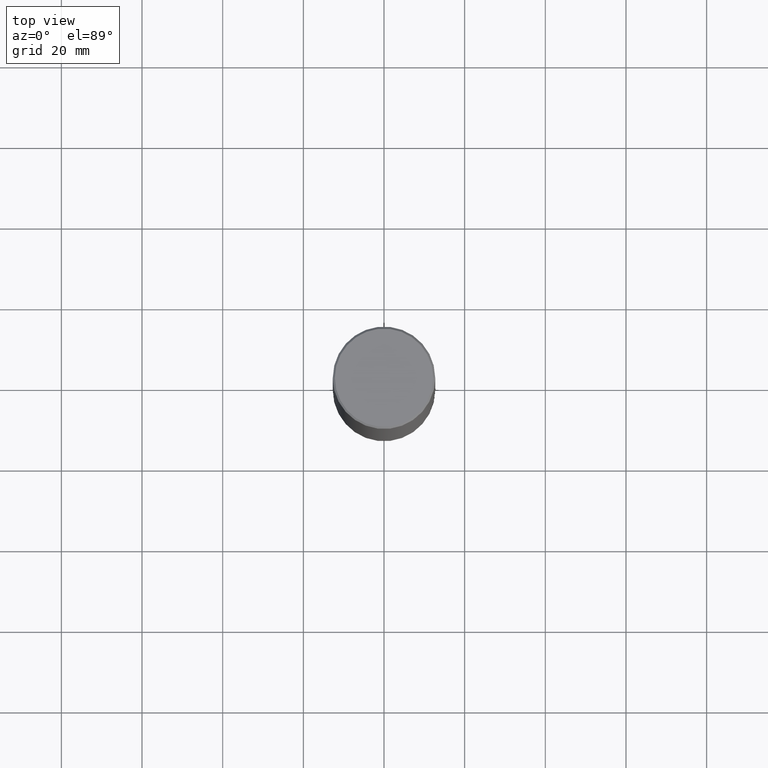
[diagram: clean part render]
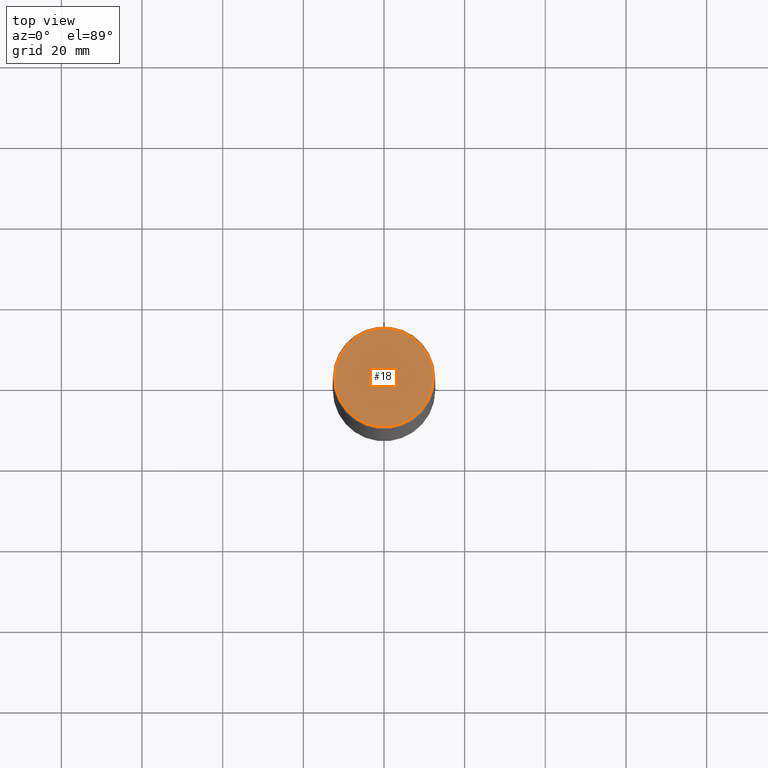
[diagram: same view with one face highlighted and labeled with its STEP entity id]
A machine part, top view. The second image highlights one B-rep face of the part: STEP entity #18.
In plain terms, the highlighted planar face has unit normal (0, -0, -1).
Its self-contained STEP definition (entity closure, byte-faithful):
#10 = ORIENTED_EDGE ( 'NONE', *, *, #49, .T. ) ;
#18 = ADVANCED_FACE ( 'NONE', ( #251 ), #147, .F. ) ;
#21 = DIRECTION ( 'NONE',  ( 1.000000000000000000, -6.982962677686266711E-15, 4.874852205035275907E-29 ) ) ;
#49 = EDGE_CURVE ( 'NONE', #218, #56, #326, .T. ) ;
#56 = VERTEX_POINT ( 'NONE', #354 ) ;
#101 = AXIS2_PLACEMENT_3D ( 'NONE', #308, #155, #280 ) ;
#110 = AXIS2_PLACEMENT_3D ( 'NONE', #271, #338, #401 ) ;
#120 = ORIENTED_EDGE ( 'NONE', *, *, #295, .T. ) ;
#147 = PLANE ( 'NONE',  #110 ) ;
#155 = DIRECTION ( 'NONE',  ( -2.445468806185136597E-29, 3.491481338843145583E-15, 1.000000000000000000 ) ) ;
#218 = VERTEX_POINT ( 'NONE', #263 ) ;
#232 = AXIS2_PLACEMENT_3D ( 'NONE', #303, #285, #21 ) ;
#251 = FACE_OUTER_BOUND ( 'NONE', #369, .T. ) ;
#263 = CARTESIAN_POINT ( 'NONE',  ( 0.4800000000000000933, -3.396558832296482493E-15, -1.067128122524866809E-16 ) ) ;
#271 = CARTESIAN_POINT ( 'NONE',  ( 3.351822085289408337E-15, 0.4800000000000000933, -1.729267448770965221E-15 ) ) ;
#280 = DIRECTION ( 'NONE',  ( 1.000000000000000000, -6.982962677686266711E-15, 4.874852205035275907E-29 ) ) ;
#285 = DIRECTION ( 'NONE',  ( -2.445468806185136597E-29, 3.491481338843145583E-15, 1.000000000000000000 ) ) ;
#295 = EDGE_CURVE ( 'NONE', #56, #218, #416, .T. ) ;
#303 = CARTESIAN_POINT ( 'NONE',  ( 2.609628535838049452E-45, -3.725857925951117973E-31, -1.067128122525102851E-16 ) ) ;
#308 = CARTESIAN_POINT ( 'NONE',  ( 2.609628535838049452E-45, -3.725857925951117973E-31, -1.067128122525102851E-16 ) ) ;
#326 = CIRCLE ( 'NONE', #101, 0.4800000000000000933 ) ;
#338 = DIRECTION ( 'NONE',  ( 2.438088387897960049E-29, -3.491481338843145188E-15, -1.000000000000000000 ) ) ;
#354 = CARTESIAN_POINT ( 'NONE',  ( -0.4800000000000000933, 3.386736898677839197E-15, -1.067128122525338523E-16 ) ) ;
#369 = EDGE_LOOP ( 'NONE', ( #120, #10 ) ) ;
#401 = DIRECTION ( 'NONE',  ( -1.000000000000000000, 6.982962677686265922E-15, -4.876176775795935793E-29 ) ) ;
#416 = CIRCLE ( 'NONE', #232, 0.4800000000000000933 ) ;